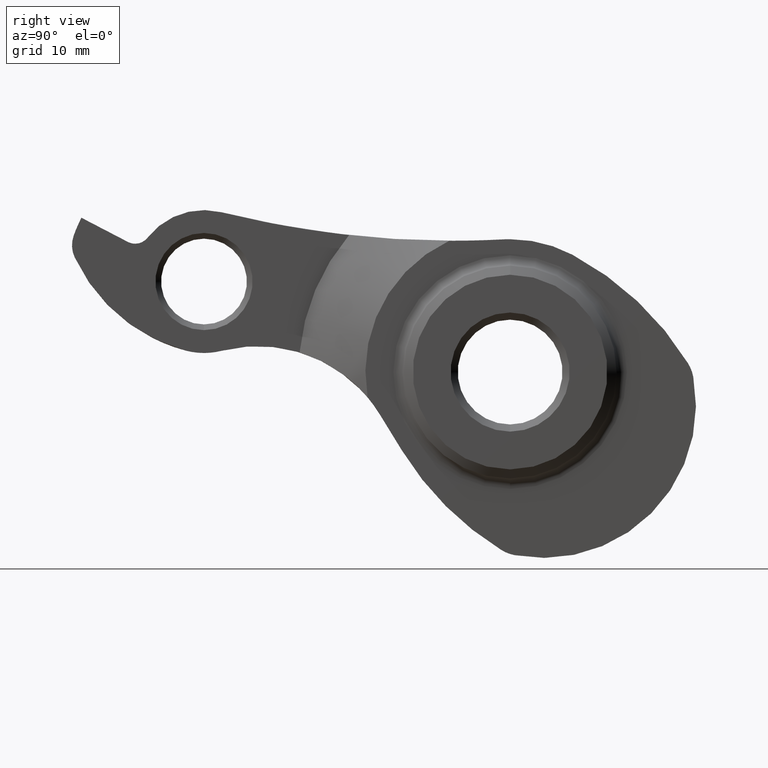
[diagram: clean part render]
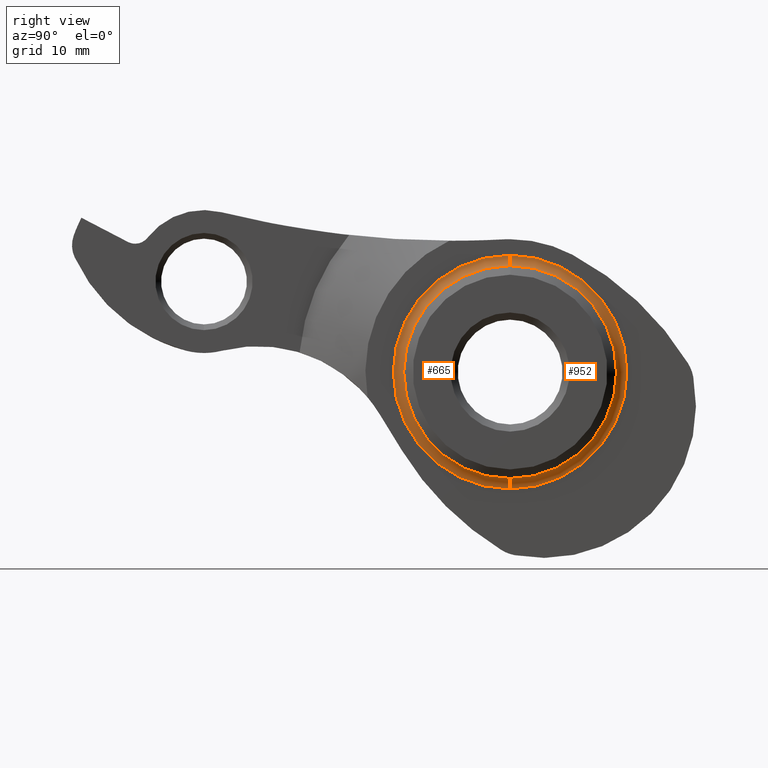
[diagram: same view with one multi-face feature highlighted, each face labeled with its STEP entity id]
A machine part, right view. The highlighted faces form ONE feature: a constant-radius fillet chain: 2 tangent blend faces with common blend radius 1.143 mm. The faces share edges in the B-rep.
Their STEP definitions:
[1] entity #952 (Torus):
#34 = DIRECTION ( 'NONE',  ( 0.0000000000000000000, 0.0000000000000000000, -1.000000000000000000 ) ) ;
#82 = AXIS2_PLACEMENT_3D ( 'NONE', #1051, #1212, #34 ) ;
#140 = DIRECTION ( 'NONE',  ( -1.000000000000000000, 0.0000000000000000000, 0.0000000000000000000 ) ) ;
#167 = DIRECTION ( 'NONE',  ( 0.0000000000000000000, 1.224646799147352961E-16, 1.000000000000000000 ) ) ;
#286 = EDGE_LOOP ( 'NONE', ( #1706, #1614, #1637, #828 ) ) ;
#320 = DIRECTION ( 'NONE',  ( 0.0000000000000000000, 1.000000000000000000, -1.224646799147353207E-16 ) ) ;
#345 = CIRCLE ( 'NONE', #843, 1.143000000000000016 ) ;
#346 = TOROIDAL_SURFACE ( 'NONE', #82, 12.25799999999999912, 1.143000000000000016 ) ;
#357 = EDGE_CURVE ( 'NONE', #1022, #1127, #345, .T. ) ;
#359 = AXIS2_PLACEMENT_3D ( 'NONE', #1016, #140, #1170 ) ;
#417 = CARTESIAN_POINT ( 'NONE',  ( 7.500000000000000000, 0.0000000000000000000, -12.25799999999999912 ) ) ;
#481 = VERTEX_POINT ( 'NONE', #417 ) ;
#491 = CIRCLE ( 'NONE', #359, 11.16766426774971599 ) ;
#574 = DIRECTION ( 'NONE',  ( 0.0000000000000000000, -1.000000000000000000, 0.0000000000000000000 ) ) ;
#730 = FACE_OUTER_BOUND ( 'NONE', #286, .T. ) ;
#735 = CARTESIAN_POINT ( 'NONE',  ( 7.500000000000000000, 0.0000000000000000000, 0.0000000000000000000 ) ) ;
#828 = ORIENTED_EDGE ( 'NONE', *, *, #1634, .F. ) ;
#843 = AXIS2_PLACEMENT_3D ( 'NONE', #1824, #320, #167 ) ;
#890 = DIRECTION ( 'NONE',  ( 0.0000000000000000000, 0.0000000000000000000, -1.000000000000000000 ) ) ;
#950 = AXIS2_PLACEMENT_3D ( 'NONE', #735, #1786, #890 ) ;
#952 = ADVANCED_FACE ( 'NONE', ( #730 ), #346, .F. ) ;
#1016 = CARTESIAN_POINT ( 'NONE',  ( 8.300046663555761484, 0.0000000000000000000, 0.0000000000000000000 ) ) ;
#1022 = VERTEX_POINT ( 'NONE', #1072 ) ;
#1051 = CARTESIAN_POINT ( 'NONE',  ( 8.642999999999998906, 0.0000000000000000000, 0.0000000000000000000 ) ) ;
#1072 = CARTESIAN_POINT ( 'NONE',  ( 8.300046663555761484, 1.434408238170010819E-15, 11.16766426774971599 ) ) ;
#1119 = CARTESIAN_POINT ( 'NONE',  ( 7.500000000000000000, 1.501172046394825516E-15, 12.25799999999999912 ) ) ;
#1127 = VERTEX_POINT ( 'NONE', #1119 ) ;
#1152 = CARTESIAN_POINT ( 'NONE',  ( 8.300046663555761484, 0.0000000000000000000, -11.16766426774971599 ) ) ;
#1170 = DIRECTION ( 'NONE',  ( 0.0000000000000000000, 0.0000000000000000000, -1.000000000000000000 ) ) ;
#1208 = CIRCLE ( 'NONE', #1642, 1.143000000000000016 ) ;
#1212 = DIRECTION ( 'NONE',  ( 1.000000000000000000, 0.0000000000000000000, 0.0000000000000000000 ) ) ;
#1332 = VERTEX_POINT ( 'NONE', #1152 ) ;
#1364 = EDGE_CURVE ( 'NONE', #1332, #481, #1208, .T. ) ;
#1465 = CARTESIAN_POINT ( 'NONE',  ( 8.642999999999998906, 0.0000000000000000000, -12.25799999999999912 ) ) ;
#1557 = EDGE_CURVE ( 'NONE', #1022, #1332, #491, .T. ) ;
#1614 = ORIENTED_EDGE ( 'NONE', *, *, #1557, .T. ) ;
#1627 = DIRECTION ( 'NONE',  ( 0.0000000000000000000, 0.0000000000000000000, -1.000000000000000000 ) ) ;
#1634 = EDGE_CURVE ( 'NONE', #1127, #481, #1880, .T. ) ;
#1637 = ORIENTED_EDGE ( 'NONE', *, *, #1364, .T. ) ;
#1642 = AXIS2_PLACEMENT_3D ( 'NONE', #1465, #574, #1627 ) ;
#1706 = ORIENTED_EDGE ( 'NONE', *, *, #357, .F. ) ;
#1786 = DIRECTION ( 'NONE',  ( -1.000000000000000000, -0.0000000000000000000, -0.0000000000000000000 ) ) ;
#1824 = CARTESIAN_POINT ( 'NONE',  ( 8.642999999999998906, 1.501172046394825516E-15, 12.25799999999999912 ) ) ;
#1880 = CIRCLE ( 'NONE', #950, 12.25799999999999912 ) ;
[2] entity #665 (Torus):
#57 = DIRECTION ( 'NONE',  ( 0.0000000000000000000, 0.0000000000000000000, -1.000000000000000000 ) ) ;
#84 = AXIS2_PLACEMENT_3D ( 'NONE', #396, #1136, #1878 ) ;
#167 = DIRECTION ( 'NONE',  ( 0.0000000000000000000, 1.224646799147352961E-16, 1.000000000000000000 ) ) ;
#265 = ORIENTED_EDGE ( 'NONE', *, *, #357, .T. ) ;
#320 = DIRECTION ( 'NONE',  ( 0.0000000000000000000, 1.000000000000000000, -1.224646799147353207E-16 ) ) ;
#342 = ORIENTED_EDGE ( 'NONE', *, *, #887, .T. ) ;
#345 = CIRCLE ( 'NONE', #843, 1.143000000000000016 ) ;
#357 = EDGE_CURVE ( 'NONE', #1022, #1127, #345, .T. ) ;
#396 = CARTESIAN_POINT ( 'NONE',  ( 8.642999999999998906, 0.0000000000000000000, 0.0000000000000000000 ) ) ;
#417 = CARTESIAN_POINT ( 'NONE',  ( 7.500000000000000000, 0.0000000000000000000, -12.25799999999999912 ) ) ;
#481 = VERTEX_POINT ( 'NONE', #417 ) ;
#574 = DIRECTION ( 'NONE',  ( 0.0000000000000000000, -1.000000000000000000, 0.0000000000000000000 ) ) ;
#665 = ADVANCED_FACE ( 'NONE', ( #1303 ), #1712, .F. ) ;
#736 = DIRECTION ( 'NONE',  ( -1.000000000000000000, 0.0000000000000000000, 0.0000000000000000000 ) ) ;
#767 = AXIS2_PLACEMENT_3D ( 'NONE', #1845, #934, #57 ) ;
#843 = AXIS2_PLACEMENT_3D ( 'NONE', #1824, #320, #167 ) ;
#887 = EDGE_CURVE ( 'NONE', #1332, #1022, #1684, .T. ) ;
#901 = AXIS2_PLACEMENT_3D ( 'NONE', #1645, #736, #1789 ) ;
#934 = DIRECTION ( 'NONE',  ( -1.000000000000000000, -0.0000000000000000000, -0.0000000000000000000 ) ) ;
#1022 = VERTEX_POINT ( 'NONE', #1072 ) ;
#1045 = EDGE_CURVE ( 'NONE', #481, #1127, #1393, .T. ) ;
#1072 = CARTESIAN_POINT ( 'NONE',  ( 8.300046663555761484, 1.434408238170010819E-15, 11.16766426774971599 ) ) ;
#1095 = ORIENTED_EDGE ( 'NONE', *, *, #1364, .F. ) ;
#1119 = CARTESIAN_POINT ( 'NONE',  ( 7.500000000000000000, 1.501172046394825516E-15, 12.25799999999999912 ) ) ;
#1127 = VERTEX_POINT ( 'NONE', #1119 ) ;
#1136 = DIRECTION ( 'NONE',  ( 1.000000000000000000, 0.0000000000000000000, 0.0000000000000000000 ) ) ;
#1152 = CARTESIAN_POINT ( 'NONE',  ( 8.300046663555761484, 0.0000000000000000000, -11.16766426774971599 ) ) ;
#1208 = CIRCLE ( 'NONE', #1642, 1.143000000000000016 ) ;
#1288 = EDGE_LOOP ( 'NONE', ( #342, #265, #1825, #1095 ) ) ;
#1303 = FACE_OUTER_BOUND ( 'NONE', #1288, .T. ) ;
#1332 = VERTEX_POINT ( 'NONE', #1152 ) ;
#1364 = EDGE_CURVE ( 'NONE', #1332, #481, #1208, .T. ) ;
#1393 = CIRCLE ( 'NONE', #767, 12.25799999999999912 ) ;
#1465 = CARTESIAN_POINT ( 'NONE',  ( 8.642999999999998906, 0.0000000000000000000, -12.25799999999999912 ) ) ;
#1627 = DIRECTION ( 'NONE',  ( 0.0000000000000000000, 0.0000000000000000000, -1.000000000000000000 ) ) ;
#1642 = AXIS2_PLACEMENT_3D ( 'NONE', #1465, #574, #1627 ) ;
#1645 = CARTESIAN_POINT ( 'NONE',  ( 8.300046663555761484, 0.0000000000000000000, 0.0000000000000000000 ) ) ;
#1684 = CIRCLE ( 'NONE', #901, 11.16766426774971599 ) ;
#1712 = TOROIDAL_SURFACE ( 'NONE', #84, 12.25799999999999912, 1.143000000000000016 ) ;
#1789 = DIRECTION ( 'NONE',  ( 0.0000000000000000000, 0.0000000000000000000, -1.000000000000000000 ) ) ;
#1824 = CARTESIAN_POINT ( 'NONE',  ( 8.642999999999998906, 1.501172046394825516E-15, 12.25799999999999912 ) ) ;
#1825 = ORIENTED_EDGE ( 'NONE', *, *, #1045, .F. ) ;
#1845 = CARTESIAN_POINT ( 'NONE',  ( 7.500000000000000000, 0.0000000000000000000, 0.0000000000000000000 ) ) ;
#1878 = DIRECTION ( 'NONE',  ( 0.0000000000000000000, 0.0000000000000000000, -1.000000000000000000 ) ) ;